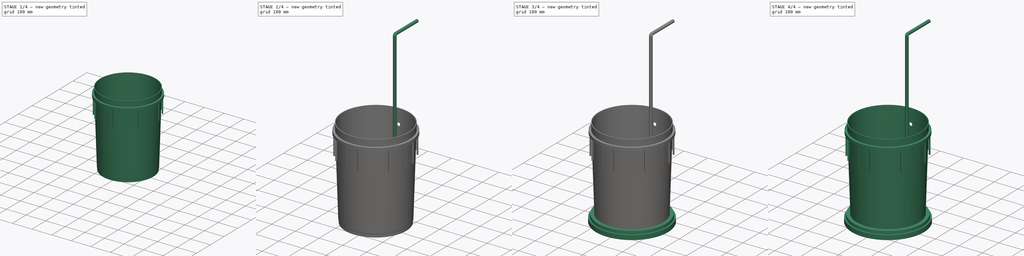
[diagram: build sequence overview — one tinted view per stage of 4, left to right]
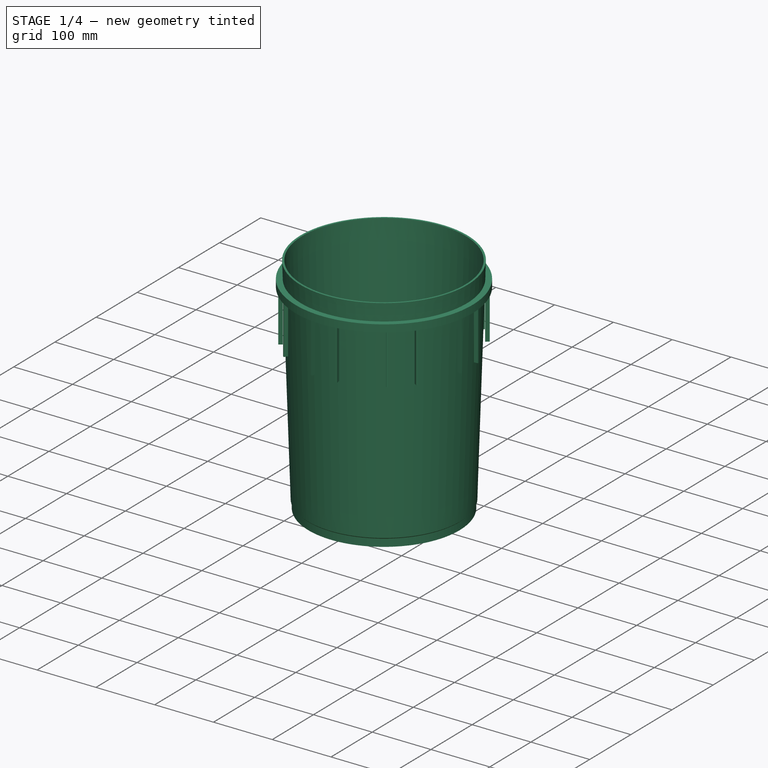
[diagram: stage 1 of 4 — iso view after this stage's code; geometry added in this stage tinted green]
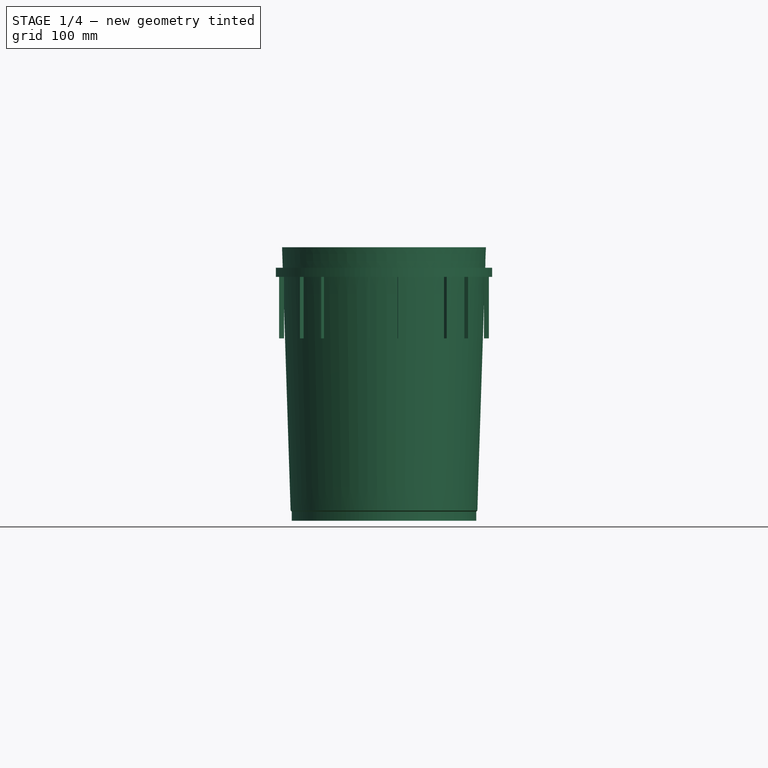
[diagram: stage 1 of 4 — front view after this stage's code; geometry added in this stage tinted green]
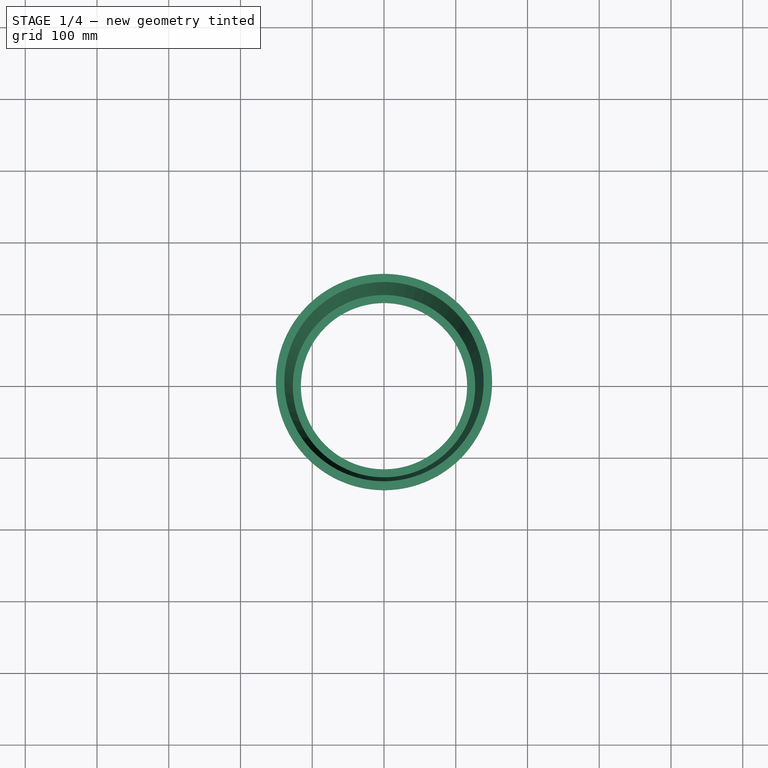
[diagram: stage 1 of 4 — top view after this stage's code; geometry added in this stage tinted green]
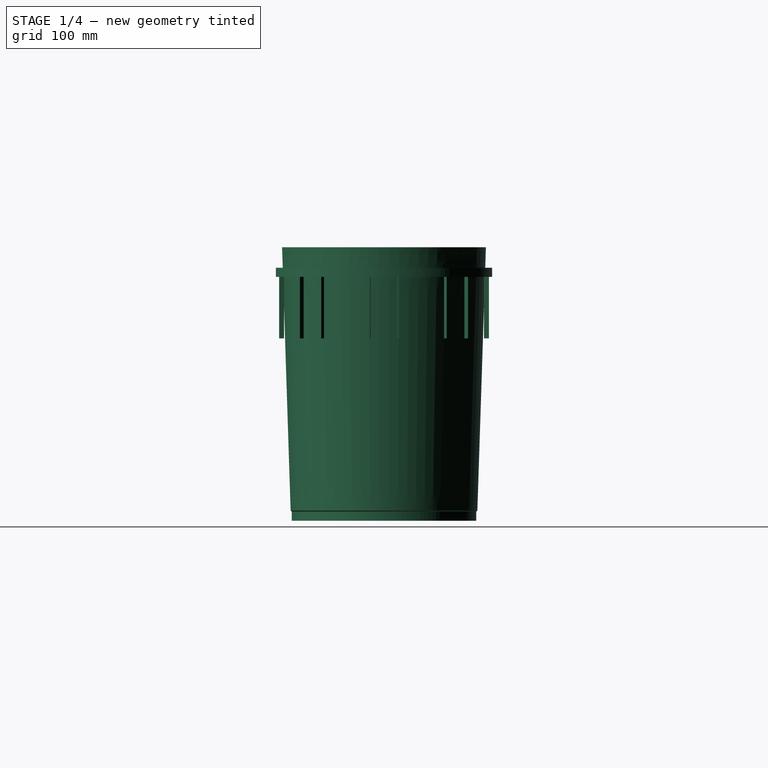
[diagram: stage 1 of 4 — right view after this stage's code; geometry added in this stage tinted green]
FCSTD DOCUMENT  (FreeCAD 0.20RUnknown)
Label: slow-sand-filter-assy
License: All rights reserved
LicenseURL: http://en.wikipedia.org/wiki/All_rights_reserved
objects: Sketcher::SketchObject×8, Part::Feature×7, PartDesign::Body×5, PartDesign::Pocket×4, App::Part×4, PartDesign::FeatureBase×3, PartDesign::Pad×1, PartDesign::AdditivePipe×1
note: 35 computed .brp shape members not serialized (recipe doc carries the construction recipe); baked Part::Feature solids carry a one-line shape summary decoded from their .brp

FEATURE [Part::Feature] Part__Feature  label="bucket"
  shape: bbox 301.4 x 301.4 x 381 mm, 134 faces (baked)
FEATURE [Part::Feature] Part__Feature001  label="lid"
  Placement = pos=(0,0,355.6) rot=(0,0,1;0rad)
  shape: bbox 304.8 x 304.8 x 31.75 mm, 17 faces (baked)
FEATURE [Part::Feature] Part__Feature002  label="oring"
  Placement = pos=(0,0,382.524) rot=(0,0,1;0rad)
  shape: bbox 284.2 x 284.2 x 3.048 mm, 1 faces (baked)
FEATURE [Part::Feature] Part__Feature003  label="bucket001"
  shape: bbox 301.4 x 301.4 x 381 mm, 134 faces (baked)
FEATURE [Part::Feature] Part__Feature004  label="lid001"
  Placement = pos=(0,0,355.6) rot=(0,0,1;0rad)
  shape: bbox 304.8 x 304.8 x 31.75 mm, 17 faces (baked)
FEATURE [Part::Feature] Part__Feature005  label="oring001"
  Placement = pos=(0,0,382.524) rot=(0,0,1;0rad)
  shape: bbox 284.2 x 284.2 x 3.048 mm, 1 faces (baked)
FEATURE [PartDesign::FeatureBase] BaseFeature
  BaseFeature = -> Part__Feature003
FEATURE [Sketcher::SketchObject] Sketch
  FullyConstrained = true
  MapMode = 5
  Support = -> [XY_Plane002]
  sketch-geometry (1):
    g0: Circle CenterX=0 CenterY=0 CenterZ=0 NormalX=0 NormalY=0 NormalZ=1 AngleXU=0 Radius=115.824
  constraints (2):
    c: Coincident(g0,g-1)
    c: Diameter(g0) = 231.648
FEATURE [PartDesign::Pocket] Pocket
  BaseFeature = -> BaseFeature
  Direction = (0,0,-1)
  Length = 5
  Length2 = 5
  Midplane = true
  Profile = -> Sketch
  ReferenceAxis = -> Sketch [N_Axis]
  Type = 1
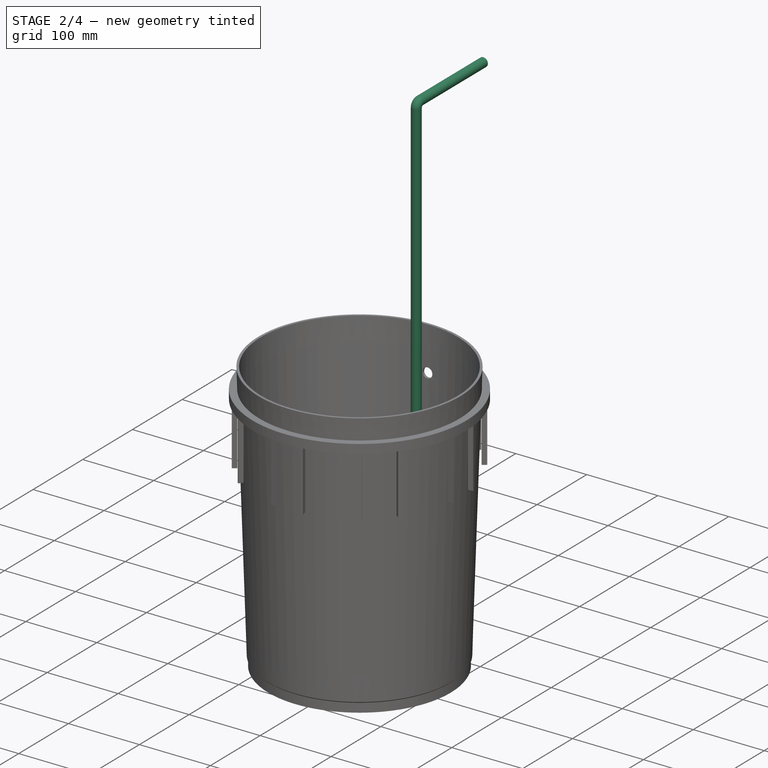
[diagram: stage 2 of 4 — iso view after this stage's code; geometry added in this stage tinted green]
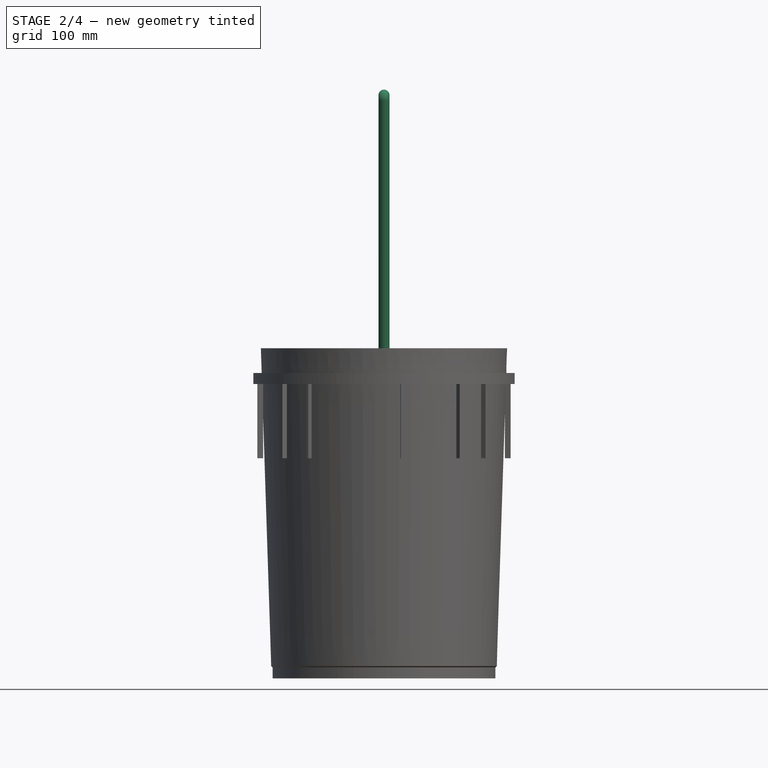
[diagram: stage 2 of 4 — front view after this stage's code; geometry added in this stage tinted green]
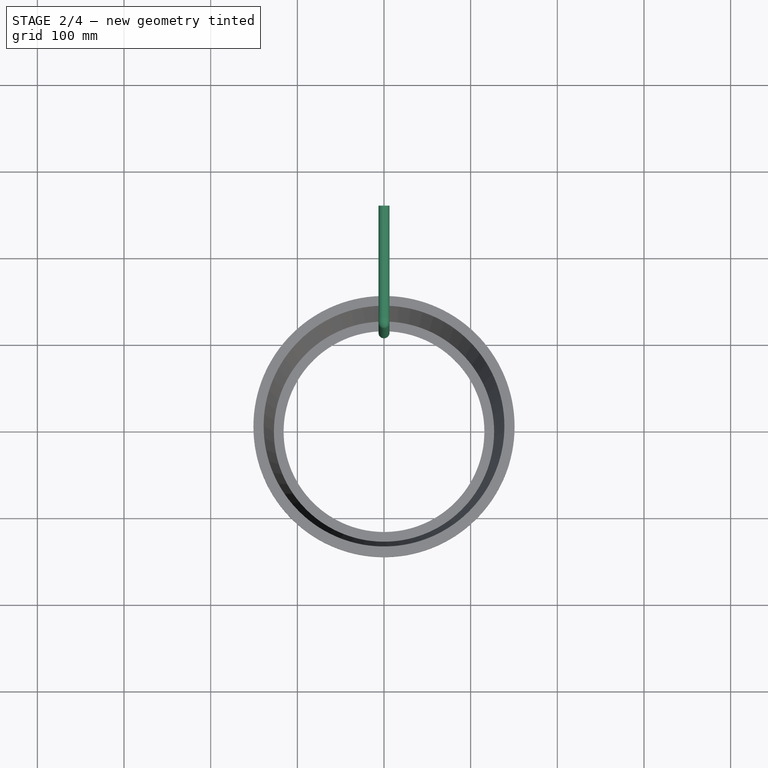
[diagram: stage 2 of 4 — top view after this stage's code; geometry added in this stage tinted green]
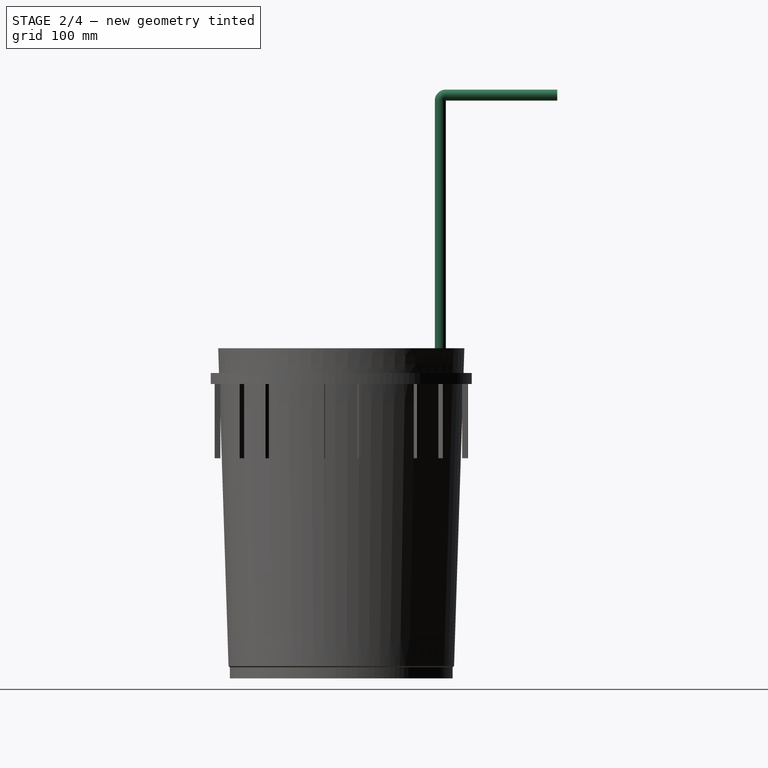
[diagram: stage 2 of 4 — right view after this stage's code; geometry added in this stage tinted green]
FEATURE [PartDesign::Body] Body003
  BaseFeature = -> Part__Feature004
  Group = -> [BaseFeature002,Sketch003,Pocket002]
  Origin = -> Origin006
  Placement = pos=(0,0,355.6) rot=(0,0,1;0rad)
  Tip = -> Pocket002
FEATURE [Part::Feature] Part__Feature006  label="drum"
  Placement = pos=(0,457.2,203.2) rot=(0,0,1;0rad)
  shape: bbox 621.6 x 621.6 x 904.9 mm, 41 faces (baked)
FEATURE [Sketcher::SketchObject] Sketch004
  FullyConstrained = true
  MapMode = 5
  Support = -> [XY_Plane008]
  sketch-geometry (2):
    g0: Circle CenterX=0 CenterY=114.3 CenterZ=0 NormalX=0 NormalY=0 NormalZ=1 AngleXU=0 Radius=6.35
    g1: Circle CenterX=0 CenterY=114.3 CenterZ=0 NormalX=0 NormalY=0 NormalZ=1 AngleXU=0 Radius=5.715
  constraints (5):
    c: PointOnObject(g0,g-2)
    c: Diameter(g0) = 12.7
    c: Coincident(g1,g0)
    c: Diameter(g1) = 11.43
    c: DistanceY(g-1,g0) = 114.3
FEATURE [Sketcher::SketchObject] Sketch005
  FullyConstrained = true
  MapMode = 5
  Placement = pos=(0,0,0) rot=(0.57735,0.57735,0.57735;2.0944rad)
  Support = -> [YZ_Plane008]
  sketch-geometry (4):
    g0: LineSegment StartX=114.3 StartY=0 StartZ=0 EndX=114.3 EndY=666.75 EndZ=0
    g1: LineSegment StartX=120.65 StartY=673.1 StartZ=0 EndX=249.238 EndY=673.1 EndZ=0
    g2: ArcOfCircle CenterX=120.65 CenterY=666.75 CenterZ=0 NormalX=0 NormalY=0 NormalZ=1 AngleXU=0 Radius=6.35 StartAngle=1.5708 EndAngle=3.14159
    g3: GeomPoint X=114.3 Y=673.1 Z=0
  constraints (11):
    c: PointOnObject(g0,g-1)
    c: Vertical(g0)
    c: DistanceX(g-1,g0) = 114.3
    c: DistanceY(g0,g3) = 673.1
    c: Horizontal(g1)
    c: DistanceX(g3,g1) = 134.938
    c: PointOnObject(g3,g0)
    c: PointOnObject(g3,g1)
    c: Tangent(g0,g2) = 1.5708
    c: Tangent(g1,g2) = 1.5708
    c: Radius(g2) = 6.35
FEATURE [PartDesign::AdditivePipe] AdditivePipe
  AuxilleryCurvelinear = true
  AuxillerySpineTangent = false
  Binormal = (0,0,0)
  Mode = 0
  Profile = -> Sketch004
  Spine = -> Sketch005
  SpineTangent = false
  Transformation = 0
  Transition = 0
FEATURE [Sketcher::SketchObject] Sketch006
  FullyConstrained = true
  MapMode = 5
  Placement = pos=(0,0,0) rot=(1,0,0;1.5708rad)
  Support = -> [XZ_Plane008]
FEATURE [PartDesign::Body] Body004
  Group = -> [Sketch004,Sketch005,AdditivePipe,Sketch006]
  Origin = -> Origin008
  Placement = pos=(0,0,25.4) rot=(0,0,1;0rad)
  Tip = -> AdditivePipe
FEATURE [App::Part] Part001  label="CopperPipe"
  Group = -> [Body004]
  Origin = -> Origin007
FEATURE [Sketcher::SketchObject] Sketch007
  FullyConstrained = false
  MapMode = 5
  Placement = pos=(0,0,0) rot=(1,0,0;1.5708rad)
  Support = -> [XZ_Plane002]
  sketch-geometry (1):
    g0: Circle CenterX=0 CenterY=320.381 CenterZ=0 NormalX=0 NormalY=0 NormalZ=1 AngleXU=0 Radius=6.82625
  constraints (2):
    c: PointOnObject(g0,g-2)
    c: Diameter(g0) = 13.6525
FEATURE [PartDesign::Pocket] Pocket003
  BaseFeature = -> Pocket
  Direction = (0,1,-2e-16)
  Length = 5
  Length2 = 5
  Profile = -> Sketch007
  ReferenceAxis = -> Sketch007 [N_Axis]
  Type = 1
FEATURE [PartDesign::Body] Body
  BaseFeature = -> Part__Feature003
  Group = -> [BaseFeature,Sketch,Pocket,Sketch007,Pocket003]
  Origin = -> Origin002
  Tip = -> Pocket003
FEATURE [App::Part] pail_5_gal001  label="pail-5-gal-top"
  Group = -> [Part__Feature005,Part__Feature003,Body,Part__Feature004,Body003]
  Origin = -> Origin001
  Placement = pos=(0,0,377.952) rot=(0,0,1;0rad)
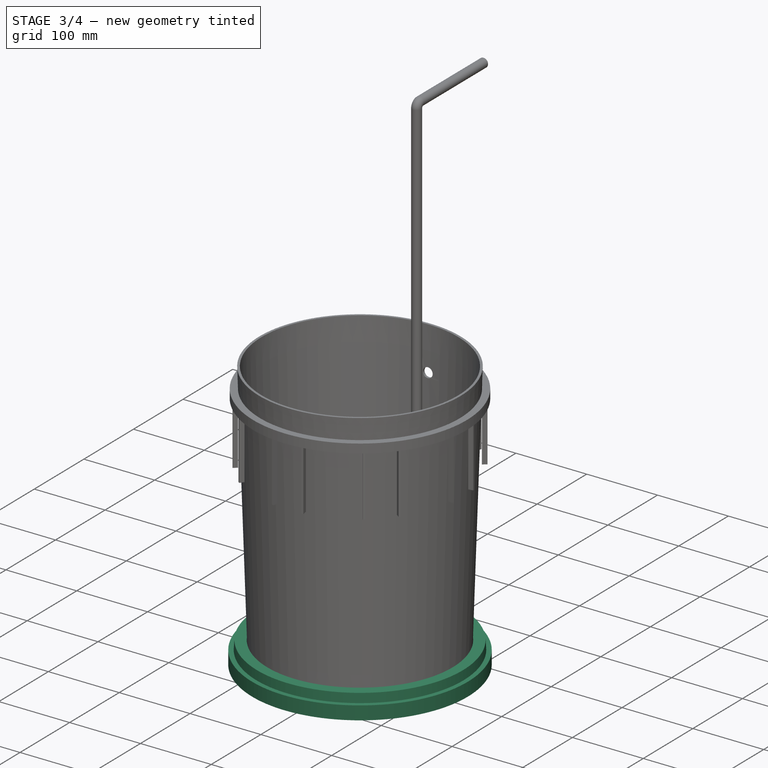
[diagram: stage 3 of 4 — iso view after this stage's code; geometry added in this stage tinted green]
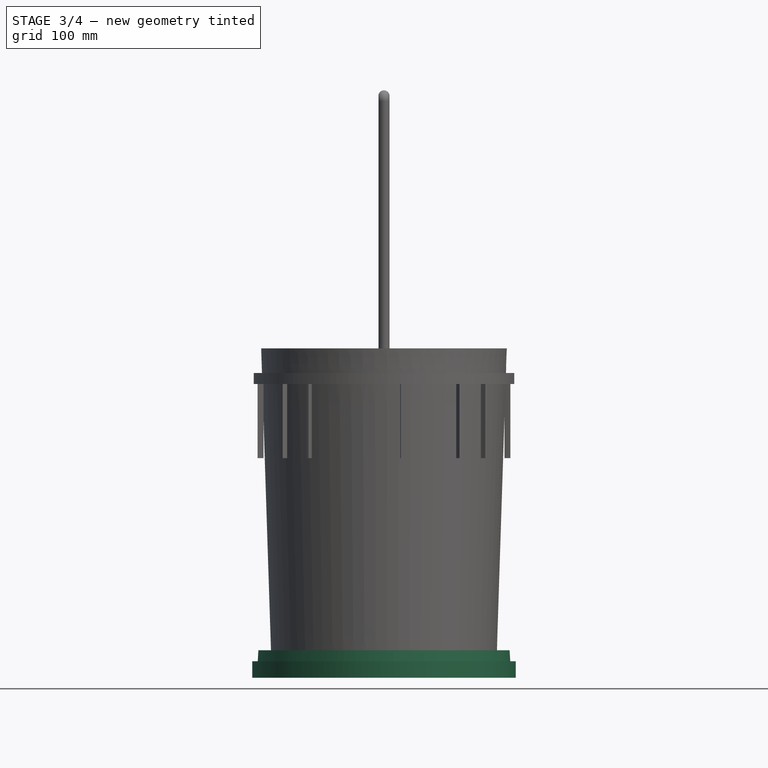
[diagram: stage 3 of 4 — front view after this stage's code; geometry added in this stage tinted green]
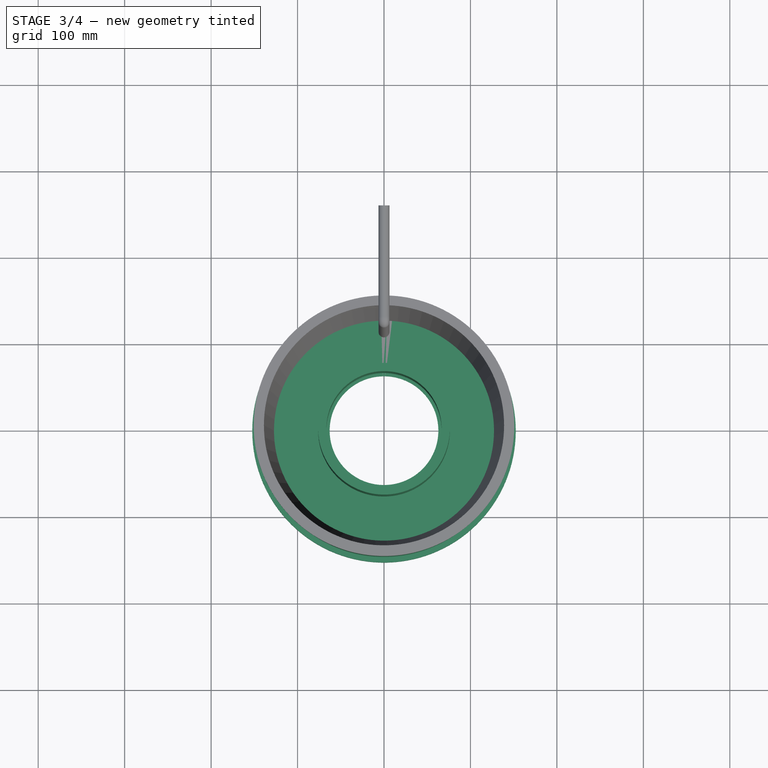
[diagram: stage 3 of 4 — top view after this stage's code; geometry added in this stage tinted green]
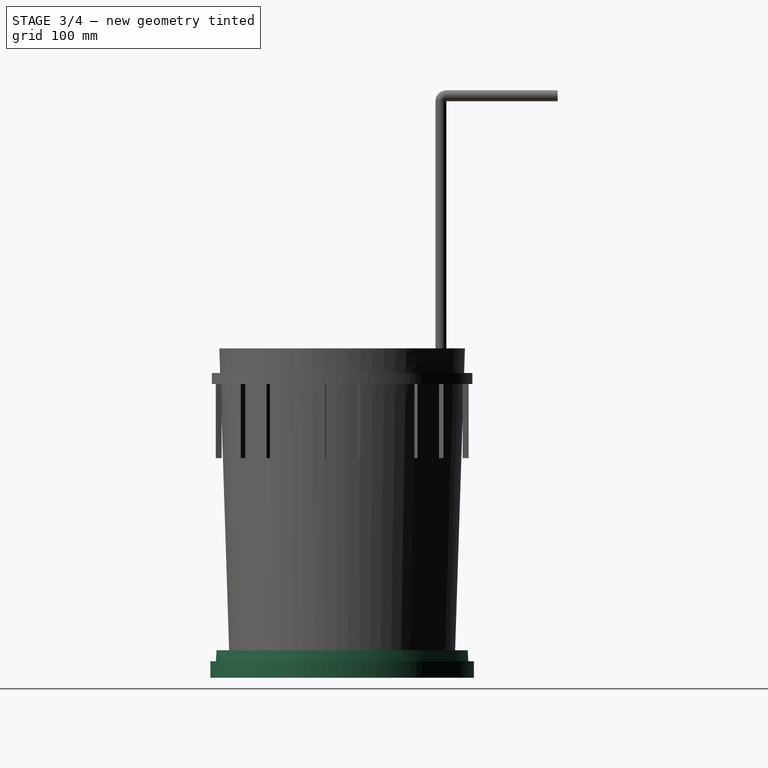
[diagram: stage 3 of 4 — right view after this stage's code; geometry added in this stage tinted green]
FEATURE [PartDesign::Body] Body001
  BaseFeature = -> Part__Feature001
  Group = -> [BaseFeature001,Sketch001,Pocket001]
  Origin = -> Origin003
  Placement = pos=(0,0,355.6) rot=(0,0,1;0rad)
  Tip = -> Pocket001
FEATURE [App::Part] pail_5_gal  label="pail-5-gal"
  Group = -> [Part__Feature,Part__Feature002,Part__Feature001,Body001]
  Origin = -> Origin
FEATURE [Sketcher::SketchObject] Sketch002
  FullyConstrained = true
  MapMode = 5
  Support = -> [XY_Plane005]
  sketch-geometry (2):
    g0: Circle CenterX=0 CenterY=0 CenterZ=0 NormalX=0 NormalY=0 NormalZ=1 AngleXU=0 Radius=76.2
    g1: Circle CenterX=0 CenterY=0 CenterZ=0 NormalX=0 NormalY=0 NormalZ=1 AngleXU=0 Radius=66.675
  constraints (4):
    c: Coincident(g0,g-1)
    c: Diameter(g0) = 152.4
    c: Coincident(g1,g0)
    c: Diameter(g1) = 133.35
FEATURE [PartDesign::Pad] Pad
  Direction = (0,0,1)
  Length = 152.4
  Length2 = 10
  Profile = -> Sketch002
  ReferenceAxis = -> Sketch002 [N_Axis]
  Type = 0
FEATURE [PartDesign::Body] Body002
  Group = -> [Sketch002,Pad]
  Origin = -> Origin005
  Tip = -> Pad
FEATURE [App::Part] Part  label="pvc"
  Group = -> [Body002]
  Origin = -> Origin004
  Placement = pos=(0,0,756.158) rot=(0,0,1;0rad)
FEATURE [PartDesign::FeatureBase] BaseFeature002
  BaseFeature = -> Part__Feature004
FEATURE [Sketcher::SketchObject] Sketch003
  FullyConstrained = true
  MapMode = 5
  Placement = pos=(0,4.9e-15,22.225) rot=(0,0,1;0rad)
  Support = -> [BaseFeature002]
  sketch-geometry (1):
    g0: Circle CenterX=0 CenterY=0 CenterZ=0 NormalX=0 NormalY=0 NormalZ=1 AngleXU=0 Radius=62.8823
  constraints (2):
    c: Coincident(g0,g-1)
    c: Diameter(g0) = 125.765
FEATURE [PartDesign::Pocket] Pocket002
  BaseFeature = -> BaseFeature002
  Direction = (0,-2e-16,-1)
  Length = 5
  Length2 = 5
  Profile = -> Sketch003
  ReferenceAxis = -> Sketch003 [N_Axis]
  Type = 1
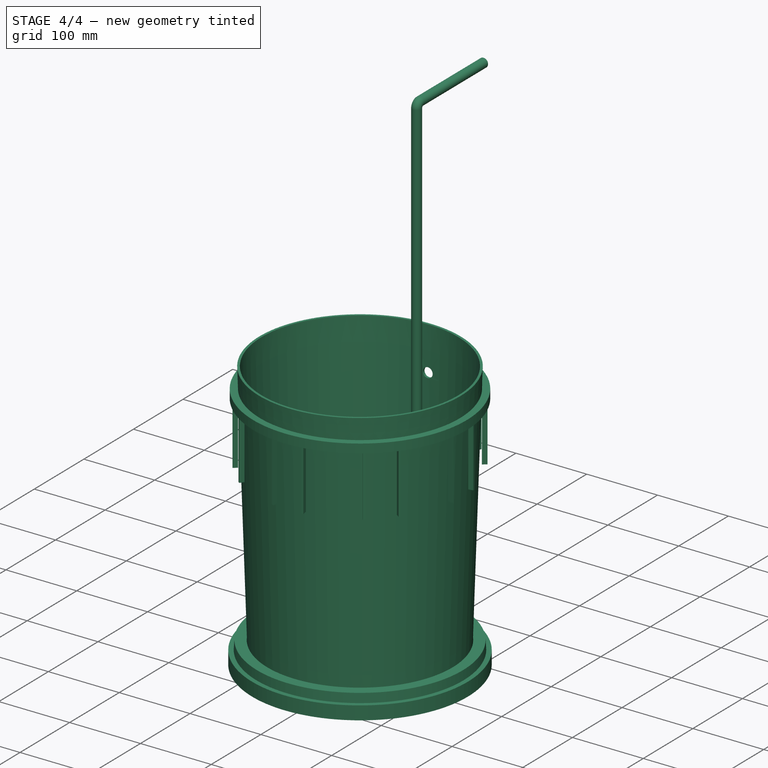
[diagram: stage 4 of 4 — iso view after this stage's code; geometry added in this stage tinted green]
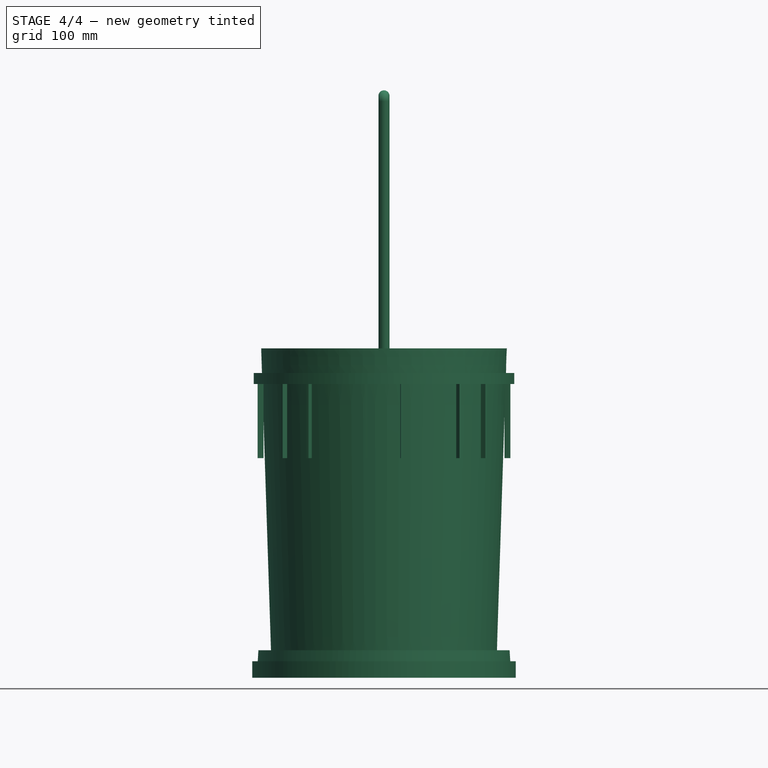
[diagram: stage 4 of 4 — front view after this stage's code; geometry added in this stage tinted green]
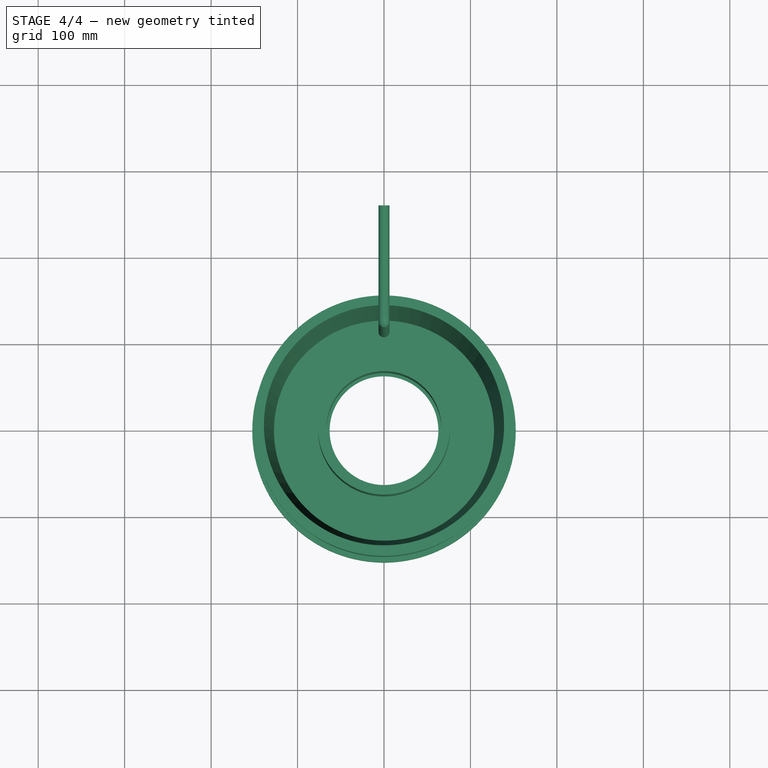
[diagram: stage 4 of 4 — top view after this stage's code; geometry added in this stage tinted green]
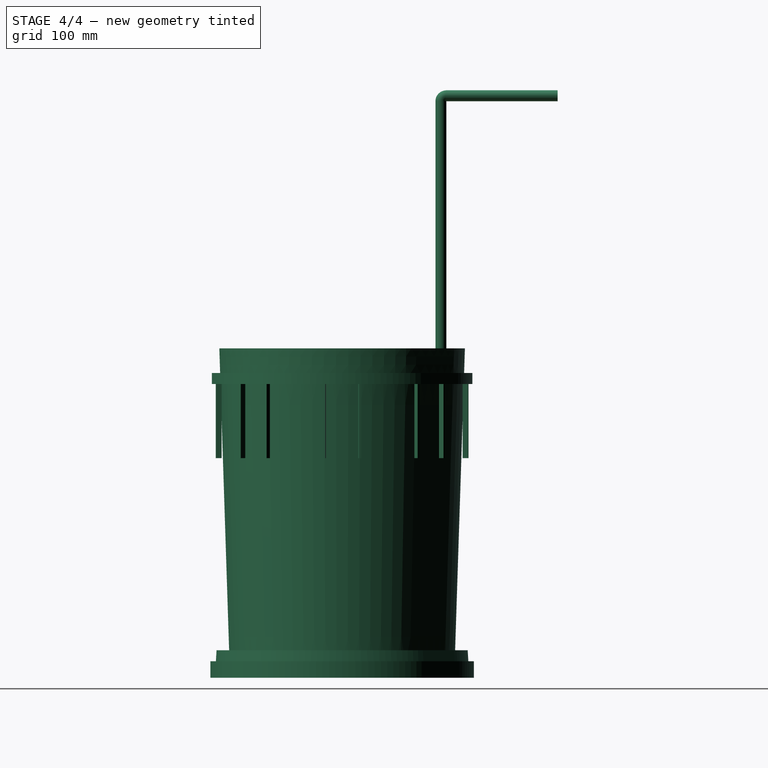
[diagram: stage 4 of 4 — right view after this stage's code; geometry added in this stage tinted green]
FEATURE [PartDesign::FeatureBase] BaseFeature001
  BaseFeature = -> Part__Feature001
FEATURE [Sketcher::SketchObject] Sketch001
  FullyConstrained = true
  MapMode = 5
  Support = -> [XY_Plane003]
  sketch-geometry (1):
    g0: Circle CenterX=0 CenterY=0 CenterZ=0 NormalX=0 NormalY=0 NormalZ=1 AngleXU=0 Radius=115.888
  constraints (2):
    c: Coincident(g0,g-1)
    c: Diameter(g0) = 231.775
FEATURE [PartDesign::Pocket] Pocket001
  BaseFeature = -> BaseFeature001
  Direction = (0,0,-1)
  Length = 5
  Length2 = 5
  Midplane = true
  Profile = -> Sketch001
  ReferenceAxis = -> Sketch001 [N_Axis]
  Type = 1
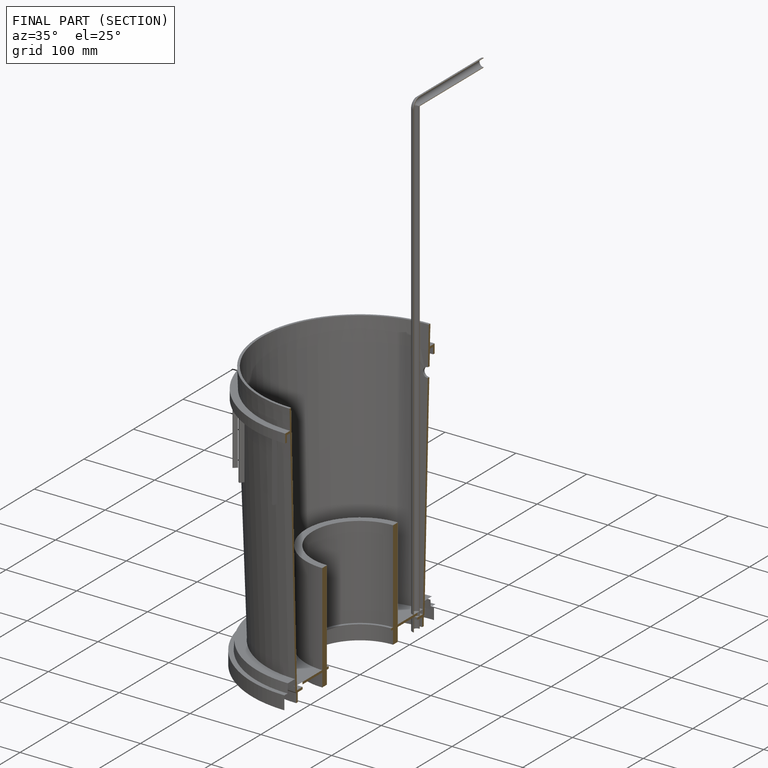
[diagram: finished part — half-section view (interior)]
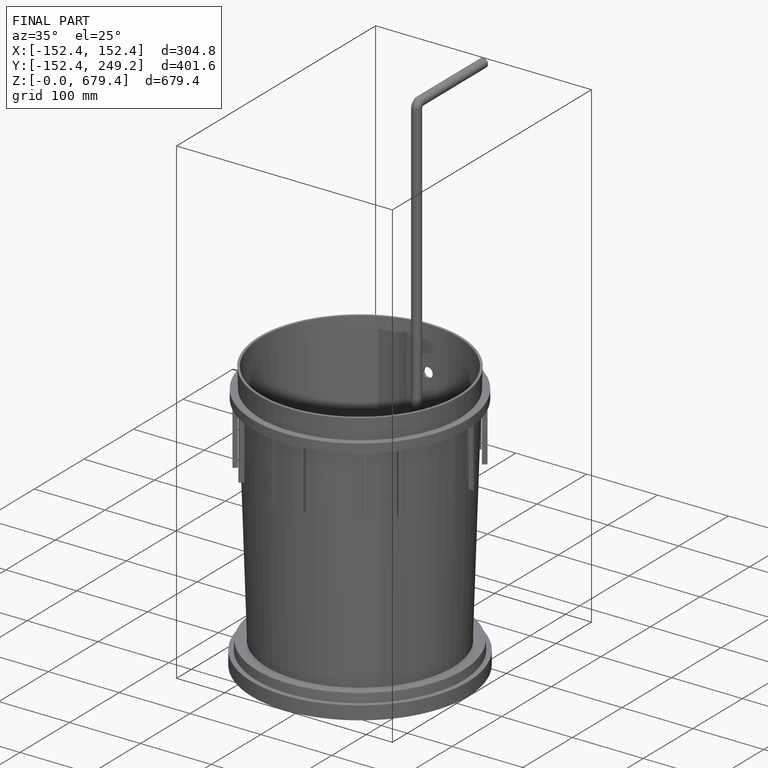
[diagram: finished part — iso view with bounding-box wireframe]
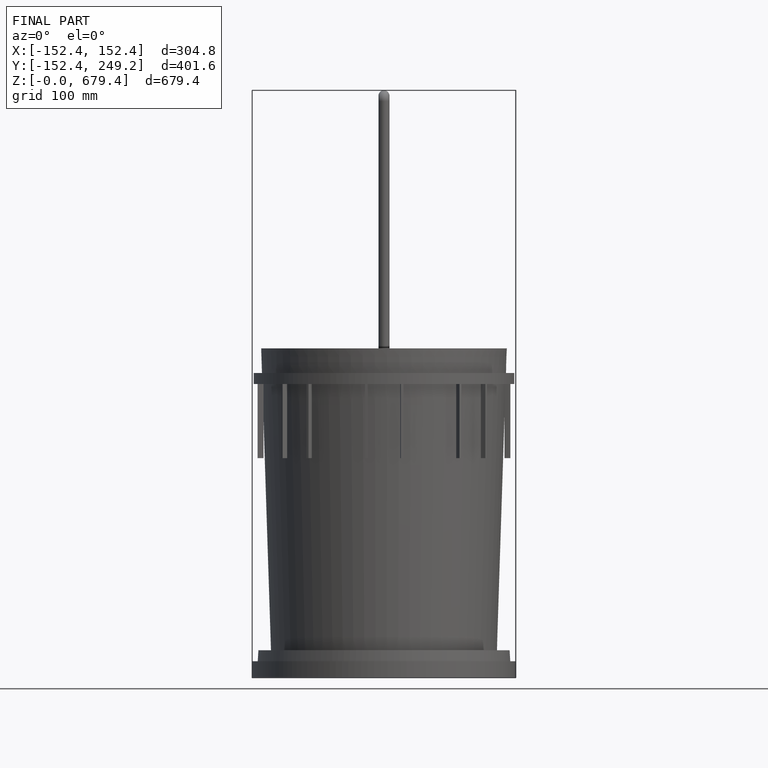
[diagram: finished part — front view with bounding-box wireframe]
